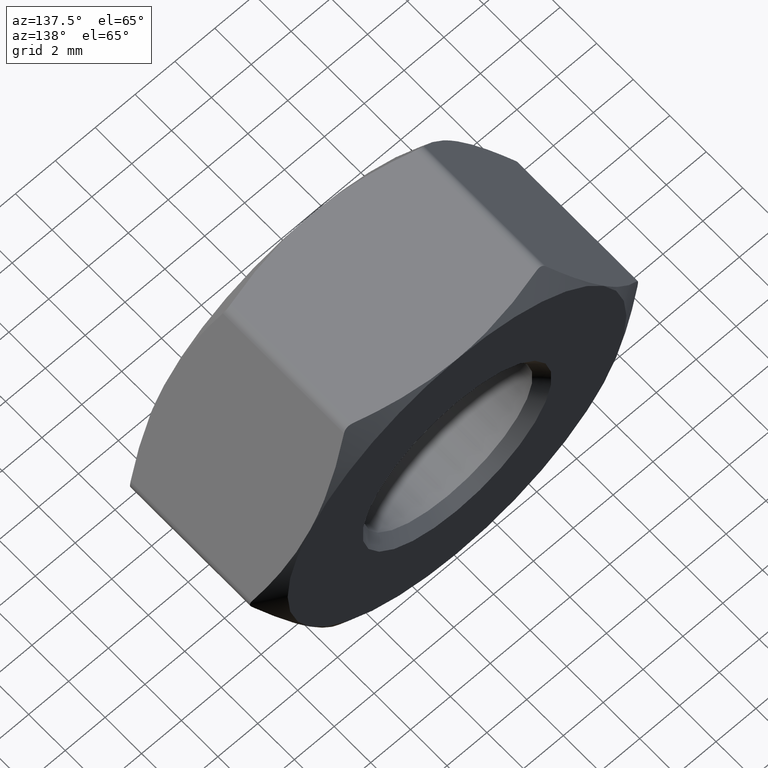
[diagram: clean part render]
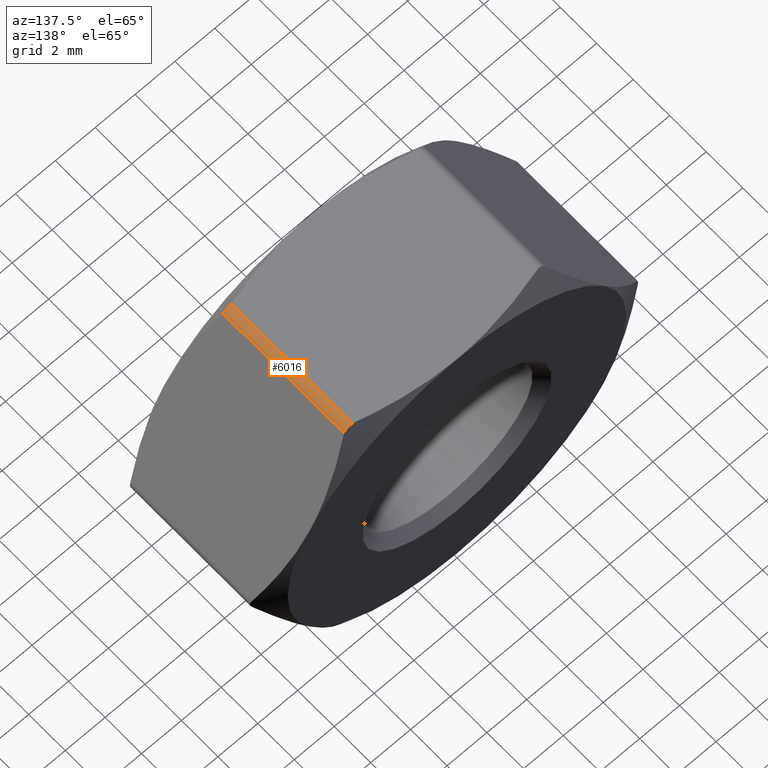
[diagram: same view with one face highlighted and labeled with its STEP entity id]
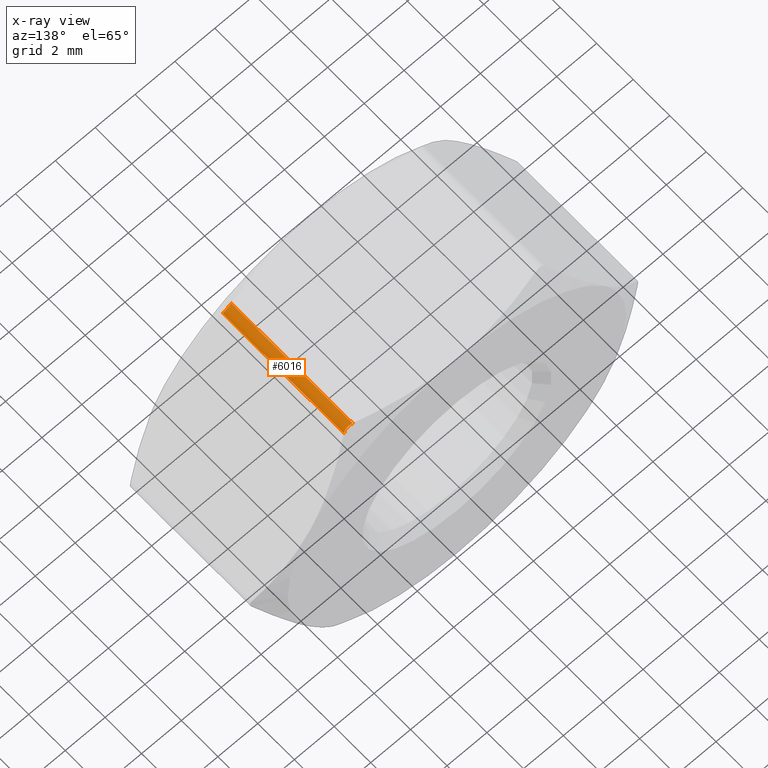
[diagram: x-ray of the same camera — body ghosted, the highlighted face saturated]
A machine part, auxiliary view. The second image highlights one B-rep face of the part: STEP entity #6016.
The next image is the same camera in x-ray: the body ghosted, the highlighted face saturated — about 0% of this face is hidden behind the body in this view.
In plain terms, the highlighted cylindrical surface (edge-blend (fillet) strip) has radius 0.5 mm, axis along (0, -1, 0).
Its self-contained STEP definition (entity closure, byte-faithful):
#20 = CARTESIAN_POINT ( 'NONE',  ( 4.945428879883190900, -3.285512090430725300, 8.388681016163632300 ) ) ;
#1219 = CARTESIAN_POINT ( 'NONE',  ( 5.051814855409225500, 3.322278594739816300, 8.250000000000000000 ) ) ;
#1281 = CARTESIAN_POINT ( 'NONE',  ( 4.792950042764463300, -3.285425769142568300, 8.476896700946166900 ) ) ;
#1325 = CARTESIAN_POINT ( 'NONE',  ( 4.618802153517005000, 4.000000000000000000, 8.500000000000000000 ) ) ;
#1486 = B_SPLINE_CURVE_WITH_KNOTS ( 'NONE', 3,
 ( #7410, #13410, #20, #1281, #4974, #6201 ),
 .UNSPECIFIED., .F., .F.,
 ( 4, 2, 4 ),
 ( 1.197807796487198900E-015, 0.0002637416435134468000, 0.0005274832870256957800 ),
 .UNSPECIFIED. ) ;
#1962 = CARTESIAN_POINT ( 'NONE',  ( 4.704689215319463700, 3.298603200315430400, 8.500000000000000000 ) ) ;
#1975 = LINE ( 'NONE', #1325, #14628 ) ;
#2004 = CARTESIAN_POINT ( 'NONE',  ( 4.618802153517005800, 4.000000000000000000, 8.000000000000000000 ) ) ;
#2941 = CARTESIAN_POINT ( 'NONE',  ( 5.051814855409225500, 4.000000000000000000, 8.250000000000000000 ) ) ;
#3341 = CARTESIAN_POINT ( 'NONE',  ( 4.618802153517005800, -3.322278594739815500, 8.500000000000000000 ) ) ;
#3897 = CARTESIAN_POINT ( 'NONE',  ( 5.051814855408607300, -3.322278594739475300, 8.250000000001071100 ) ) ;
#4158 = VECTOR ( 'NONE', #15588, 1000.000000000000000 ) ;
#4974 = CARTESIAN_POINT ( 'NONE',  ( 4.704720040657419700, -3.298594703086405100, 8.500000000000001800 ) ) ;
#4994 = VERTEX_POINT ( 'NONE', #13472 ) ;
#6016 = ADVANCED_FACE ( 'NONE', ( #14832 ), #6996, .T. ) ;
#6201 = CARTESIAN_POINT ( 'NONE',  ( 4.618802153517005800, -3.322278594739815500, 8.500000000000000000 ) ) ;
#6543 = EDGE_LOOP ( 'NONE', ( #7283, #12253, #15813, #15494 ) ) ;
#6996 = CYLINDRICAL_SURFACE ( 'NONE', #13142, 0.5000000000000004400 ) ;
#7151 = CARTESIAN_POINT ( 'NONE',  ( 5.051814855409225500, 3.322278594739816300, 8.250000000000000000 ) ) ;
#7283 = ORIENTED_EDGE ( 'NONE', *, *, #10491, .F. ) ;
#7292 = EDGE_CURVE ( 'NONE', #8046, #4994, #1975, .T. ) ;
#7410 = CARTESIAN_POINT ( 'NONE',  ( 5.051814855408607300, -3.322278594739475300, 8.250000000001071100 ) ) ;
#7828 = VERTEX_POINT ( 'NONE', #1219 ) ;
#8046 = VERTEX_POINT ( 'NONE', #3341 ) ;
#8923 = B_SPLINE_CURVE_WITH_KNOTS ( 'NONE', 3,
 ( #9451, #1962, #9499, #13372, #10835, #7151 ),
 .UNSPECIFIED., .F., .F.,
 ( 4, 2, 4 ),
 ( 0.0000000000000000000, 0.0002637416435128527100, 0.0005274832870257054300 ),
 .UNSPECIFIED. ) ;
#9451 = CARTESIAN_POINT ( 'NONE',  ( 4.618802153517005800, 3.322278594739815500, 8.500000000000000000 ) ) ;
#9499 = CARTESIAN_POINT ( 'NONE',  ( 4.792096424299574100, 3.285512090430788000, 8.477207550670206300 ) ) ;
#10491 = EDGE_CURVE ( 'NONE', #4994, #7828, #8923, .T. ) ;
#10823 = DIRECTION ( 'NONE',  ( 0.0000000000000000000, 0.0000000000000000000, -1.000000000000000000 ) ) ;
#10835 = CARTESIAN_POINT ( 'NONE',  ( 5.008855911838915100, 3.298594703086347800, 8.324407072903268200 ) ) ;
#11791 = DIRECTION ( 'NONE',  ( 0.0000000000000000000, -1.000000000000000000, 0.0000000000000000000 ) ) ;
#12164 = EDGE_CURVE ( 'NONE', #12589, #8046, #1486, .T. ) ;
#12253 = ORIENTED_EDGE ( 'NONE', *, *, #7292, .F. ) ;
#12420 = LINE ( 'NONE', #2941, #4158 ) ;
#12492 = DIRECTION ( 'NONE',  ( -0.0000000000000000000, 1.000000000000000000, -0.0000000000000000000 ) ) ;
#12589 = VERTEX_POINT ( 'NONE', #3897 ) ;
#13142 = AXIS2_PLACEMENT_3D ( 'NONE', #2004, #11791, #10823 ) ;
#13372 = CARTESIAN_POINT ( 'NONE',  ( 4.944732866893319000, 3.285425769142506200, 8.389264846577136200 ) ) ;
#13410 = CARTESIAN_POINT ( 'NONE',  ( 5.008871324508087100, -3.298603200315140000, 8.324380377377176300 ) ) ;
#13472 = CARTESIAN_POINT ( 'NONE',  ( 4.618802153517005800, 3.322278594739815500, 8.500000000000000000 ) ) ;
#14628 = VECTOR ( 'NONE', #12492, 1000.000000000000000 ) ;
#14832 = FACE_OUTER_BOUND ( 'NONE', #6543, .T. ) ;
#15494 = ORIENTED_EDGE ( 'NONE', *, *, #15554, .F. ) ;
#15554 = EDGE_CURVE ( 'NONE', #7828, #12589, #12420, .T. ) ;
#15588 = DIRECTION ( 'NONE',  ( 0.0000000000000000000, -1.000000000000000000, 0.0000000000000000000 ) ) ;
#15813 = ORIENTED_EDGE ( 'NONE', *, *, #12164, .F. ) ;